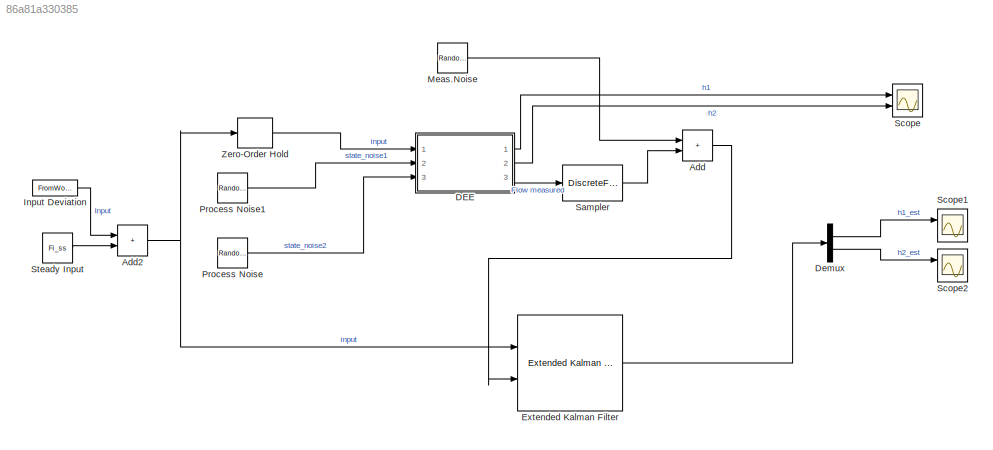
MODEL slx_86a81a330385
KIND model
CONFIG AbsTol = auto
CONFIG EnableMultiTasking = off
CONFIG FixedStep = auto
CONFIG MaxStep = auto
CONFIG MinStep = auto
CONFIG RelTol = 1e-3
CONFIG SampleTimeConstraint = Unconstrained
CONFIG SolverName = VariableStepAuto
CONFIG StartTime = 0.0
CONFIG StopTime = tf
WORKSPACE source: MATLAB code (in-file)
WORKSPACE code: Cv1 = 0.8;Cv2=0.8;
WORKSPACE code: A1=1.2;A2=1.2;
WORKSPACE Fi_ss = 2
WORKSPACE h1_ss = (Fi_ss/Cv1)^2
WORKSPACE h2_ss = (Cv1/Cv2)^2*h1_ss
WORKSPACE code: x0 =[h1_ss;h2_ss];
WORKSPACE Ts = 0.1
WORKSPACE tf = 127.4
WORKSPACE kvec = (0:Ts:tf)'
WORKSPACE N = length(kvec)
WORKSPACE ukvec = idinput(N,'prbs',[0 0.2],[-1 1])
WORKSPACE simin = [kvec ukvec]
WORKSPACE Qtrue = diag([0.2,0.1])
WORKSPACE Rtrue = 0.1
BLOCK [Sum] Add
  IconShape = rectangular
  Ports = [2, 1]
BLOCK [Sum] Add2
  IconShape = rectangular
  Ports = [2, 1]
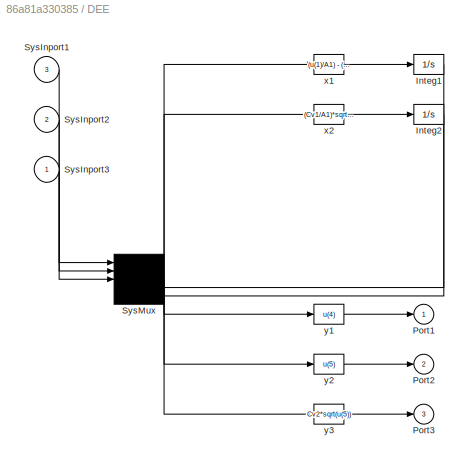
BLOCK [SubSystem] DEE
  OpenFcn = diffeqed
  Ports = [3, 3]
  RequestExecContextInheritance = off
BLOCK [Integrator] DEE/Integ1
  InitialCondition = x0(1)
  Ports = [1, 1]
BLOCK [Integrator] DEE/Integ2
  InitialCondition = x0(2)
  Ports = [1, 1]
BLOCK [Outport] DEE/Port1
BLOCK [Outport] DEE/Port2
  Port = 2
BLOCK [Outport] DEE/Port3
  Port = 3
BLOCK [Inport] DEE/SysInport1
  Port = 3
BLOCK [Inport] DEE/SysInport2
  Port = 2
BLOCK [Inport] DEE/SysInport3
BLOCK [Mux] DEE/SysMux
  Inputs = 5
  Ports = [5, 1]
BLOCK [Fcn] DEE/x1
  Expr = (u(1)/A1) - (Cv1/A1)*sqrt(u(4)) + u(2)
BLOCK [Fcn] DEE/x2
  Expr = (Cv1/A1)*sqrt(u(4)) - (Cv2/A2)*sqrt(u(5))+ u(3)
BLOCK [Fcn] DEE/y1
  Expr = u(4)
BLOCK [Fcn] DEE/y2
  Expr = u(5)
BLOCK [Fcn] DEE/y3
  Expr = Cv2*sqrt(u(5))
BLOCK [Demux] Demux
  Outputs = 2
  Ports = [1, 2]
BLOCK [Reference] Extended Kalman Filter  REF=sharedTrackingLibrary/Extended Kalman Filter
  Ports = [2, 1]
  SourceBlock = sharedTrackingLibrary/Extended Kalman Filter
  SourceProductBaseCode = CT,DR,TF,ID,LP,NV,AR,RO,RR,UV,VE
  SourceType = Extended Kalman Filter
BLOCK [FromWorkspace] Input Deviation
  Interpolate = off
  OutputAfterFinalValue = Holding final value
  SampleTime = Ts
  VariableName = simin
BLOCK [RandomNumber] Meas.Noise
  SampleTime = Ts
  Seed = 4781
  Variance = Rtrue
BLOCK [RandomNumber] Process Noise
  SampleTime = Ts
  Seed = 38760
  Variance = Qtrue(2,2)
BLOCK [RandomNumber] Process Noise1
  SampleTime = Ts
  Seed = 1234
  Variance = Qtrue(1)
BLOCK [DiscreteFilter] Sampler
  Denominator = [1]
  InputPortMap = u0
  Ports = [1, 1]
  SampleTime = Ts
BLOCK [Scope] Scope
  Floating = off
  NumInputPorts = 2
  Ports = [2]
  ScopeSpecificationString = Simulink.scopes.TimeScopeBlockCfg('CurrentConfiguration', extmgr.ConfigurationSet(extmgr.Configuration('Core','General UI',true),extmgr.Configuration('Core','Source UI',true),extmgr.Configuration('Sources','WiredSimulink',true),extmgr.Configuration('Visuals','Time Domain',true,'SerializedDisplays',{struct('MinYLimReal','0.625','MaxYLimReal','6.875','YLabelReal','','MinYLimMag','0.625','MaxYLimMag'...<+1338ch>
BLOCK [Scope] Scope1
  Floating = off
  NumInputPorts = 2
  Ports = [2]
  ScopeSpecificationString = Simulink.scopes.TimeScopeBlockCfg('CurrentConfiguration', extmgr.ConfigurationSet(extmgr.Configuration('Core','General UI',true),extmgr.Configuration('Core','Source UI',true),extmgr.Configuration('Sources','WiredSimulink',true,'DataLoggingVariableName','ScopeData1'),extmgr.Configuration('Visuals','Time Domain',true,'SerializedDisplays',{struct('MinYLimReal','-0.78125','MaxYLimReal','7.03125','YLab...<+1434ch>
BLOCK [Scope] Scope2
  Floating = off
  NumInputPorts = 2
  Ports = [2]
  ScopeSpecificationString = Simulink.scopes.TimeScopeBlockCfg('CurrentConfiguration', extmgr.ConfigurationSet(extmgr.Configuration('Core','General UI',true),extmgr.Configuration('Core','Source UI',true),extmgr.Configuration('Sources','WiredSimulink',true,'DataLoggingVariableName','ScopeData2'),extmgr.Configuration('Visuals','Time Domain',true,'SerializedDisplays',{struct('MinYLimReal','-2.47483','MaxYLimReal','22.00731','YLa...<+1410ch>
BLOCK [Constant] Steady Input
  SampleTime = Ts
  Value = Fi_ss
BLOCK [ZeroOrderHold] Zero-Order Hold
  SampleTime = Ts
NET Add2:1 -> Extended Kalman Filter:1, Zero-Order Hold:1
LINE Add:1 -> Extended Kalman Filter:2
LINE DEE/Integ1:1 -> DEE/SysMux:4
LINE DEE/Integ2:1 -> DEE/SysMux:5
LINE DEE/SysInport1:1 -> DEE/SysMux:1
LINE DEE/SysInport2:1 -> DEE/SysMux:2
LINE DEE/SysInport3:1 -> DEE/SysMux:3
NET DEE/SysMux:1 -> DEE/x1:1, DEE/x2:1, DEE/y1:1, DEE/y2:1, DEE/y3:1
LINE DEE/x1:1 -> DEE/Integ1:1
LINE DEE/x2:1 -> DEE/Integ2:1
LINE DEE/y1:1 -> DEE/Port1:1
LINE DEE/y2:1 -> DEE/Port2:1
LINE DEE/y3:1 -> DEE/Port3:1
LINE DEE:1 -> Scope:1
LINE DEE:2 -> Scope:2
LINE DEE:3 -> Sampler:1
LINE Demux:1 -> Scope1:1
LINE Demux:2 -> Scope2:1
LINE Extended Kalman Filter:1 -> Demux:1
LINE Input Deviation:1 -> Add2:1
LINE Meas.Noise:1 -> Add:1
LINE Process Noise1:1 -> DEE:2
LINE Process Noise:1 -> DEE:3
LINE Sampler:1 -> Add:2
LINE Steady Input:1 -> Add2:2
LINE Zero-Order Hold:1 -> DEE:1
note: NET lines group one-source signal fan-out (src -> all destinations, sorted); 1:1 wires keep LINE
